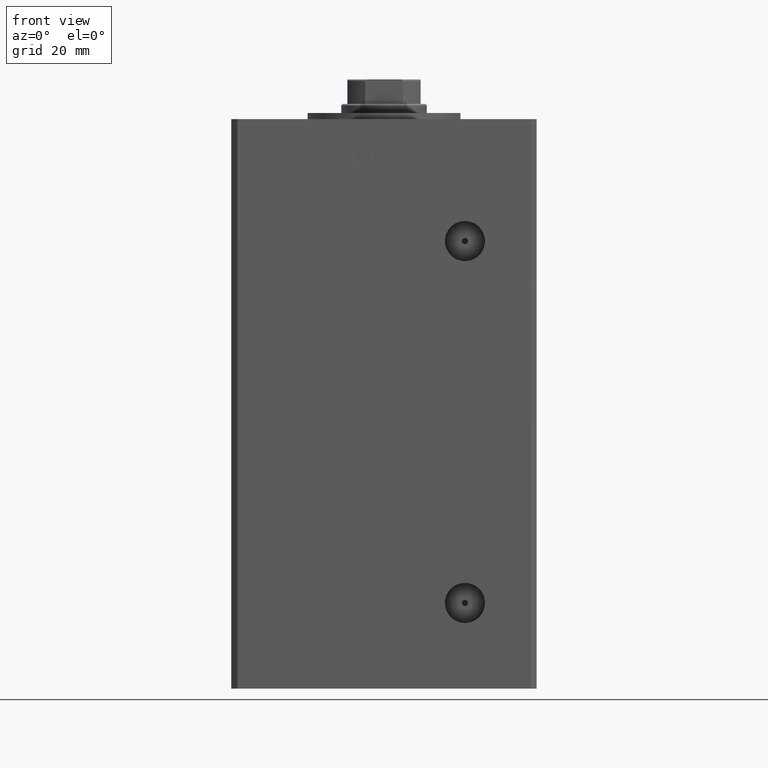
[diagram: clean part render]
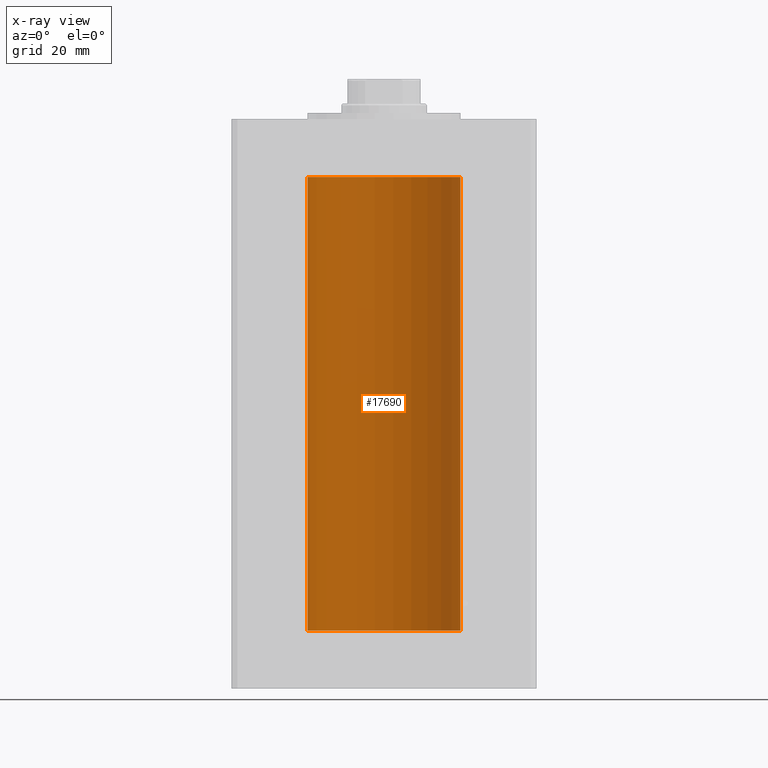
[diagram: x-ray — body ghosted, one internal face saturated and labeled with its STEP entity id]
A machine part, front view, then the same camera in x-ray: the body is ghosted and one INTERNAL B-rep face — a face not visible from any outside direction — is saturated and labeled: STEP entity #17690.
In plain terms, the highlighted cylindrical surface (partial cylindrical patch) has radius 25 mm, axis along (-0, -0, -1).
Its self-contained STEP definition (entity closure, byte-faithful):
#3460 = VERTEX_POINT ( 'NONE', #35253 ) ;
#3826 = FACE_OUTER_BOUND ( 'NONE', #51725, .T. ) ;
#4195 = CARTESIAN_POINT ( 'NONE',  ( -25.00000000000000000, 0.000000000000000000, 0.000000000000000000 ) ) ;
#4307 = LINE ( 'NONE', #24132, #24681 ) ;
#4439 = CARTESIAN_POINT ( 'NONE',  ( 25.00000000000000000, 3.061616997868383043E-15, 148.5000000000000000 ) ) ;
#4934 = LINE ( 'NONE', #30286, #24932 ) ;
#7642 = DIRECTION ( 'NONE',  ( 1.000000000000000000, 0.000000000000000000, 0.000000000000000000 ) ) ;
#8149 = AXIS2_PLACEMENT_3D ( 'NONE', #52101, #28134, #29954 ) ;
#10846 = ORIENTED_EDGE ( 'NONE', *, *, #51607, .T. ) ;
#13717 = ORIENTED_EDGE ( 'NONE', *, *, #14524, .F. ) ;
#14524 = EDGE_CURVE ( 'NONE', #37474, #48031, #4934, .T. ) ;
#15531 = EDGE_CURVE ( 'NONE', #48031, #19907, #31720, .T. ) ;
#15712 = AXIS2_PLACEMENT_3D ( 'NONE', #24522, #24006, #51941 ) ;
#17513 = CARTESIAN_POINT ( 'NONE',  ( 25.00000000000000000, 3.061616997868383043E-15, 0.000000000000000000 ) ) ;
#17690 = ADVANCED_FACE ( 'NONE', ( #3826 ), #36031, .F. ) ;
#19520 = CARTESIAN_POINT ( 'NONE',  ( 0.000000000000000000, 0.000000000000000000, 148.5000000000000000 ) ) ;
#19907 = VERTEX_POINT ( 'NONE', #4195 ) ;
#24006 = DIRECTION ( 'NONE',  ( -0.000000000000000000, 0.000000000000000000, 1.000000000000000000 ) ) ;
#24132 = CARTESIAN_POINT ( 'NONE',  ( -25.00000000000000000, 0.000000000000000000, 148.5000000000000000 ) ) ;
#24522 = CARTESIAN_POINT ( 'NONE',  ( 0.000000000000000000, 0.000000000000000000, 0.000000000000000000 ) ) ;
#24681 = VECTOR ( 'NONE', #35746, 1000.000000000000000 ) ;
#24932 = VECTOR ( 'NONE', #38175, 1000.000000000000000 ) ;
#28134 = DIRECTION ( 'NONE',  ( -0.000000000000000000, -0.000000000000000000, -1.000000000000000000 ) ) ;
#29954 = DIRECTION ( 'NONE',  ( -1.000000000000000000, 0.000000000000000000, 0.000000000000000000 ) ) ;
#30286 = CARTESIAN_POINT ( 'NONE',  ( 25.00000000000000000, 3.061616997868383043E-15, 148.5000000000000000 ) ) ;
#31720 = CIRCLE ( 'NONE', #15712, 25.00000000000000000 ) ;
#33132 = CIRCLE ( 'NONE', #46571, 25.00000000000000000 ) ;
#35253 = CARTESIAN_POINT ( 'NONE',  ( -25.00000000000000000, 0.000000000000000000, 148.5000000000000000 ) ) ;
#35746 = DIRECTION ( 'NONE',  ( -0.000000000000000000, -0.000000000000000000, -1.000000000000000000 ) ) ;
#36031 = CYLINDRICAL_SURFACE ( 'NONE', #8149, 25.00000000000000000 ) ;
#37474 = VERTEX_POINT ( 'NONE', #4439 ) ;
#37998 = ORIENTED_EDGE ( 'NONE', *, *, #51027, .T. ) ;
#38175 = DIRECTION ( 'NONE',  ( -0.000000000000000000, -0.000000000000000000, -1.000000000000000000 ) ) ;
#38519 = ORIENTED_EDGE ( 'NONE', *, *, #15531, .F. ) ;
#46571 = AXIS2_PLACEMENT_3D ( 'NONE', #19520, #46930, #7642 ) ;
#46930 = DIRECTION ( 'NONE',  ( -0.000000000000000000, 0.000000000000000000, 1.000000000000000000 ) ) ;
#48031 = VERTEX_POINT ( 'NONE', #17513 ) ;
#51027 = EDGE_CURVE ( 'NONE', #37474, #3460, #33132, .T. ) ;
#51607 = EDGE_CURVE ( 'NONE', #3460, #19907, #4307, .T. ) ;
#51725 = EDGE_LOOP ( 'NONE', ( #13717, #37998, #10846, #38519 ) ) ;
#51941 = DIRECTION ( 'NONE',  ( 1.000000000000000000, 0.000000000000000000, 0.000000000000000000 ) ) ;
#52101 = CARTESIAN_POINT ( 'NONE',  ( 0.000000000000000000, 0.000000000000000000, 148.5000000000000000 ) ) ;